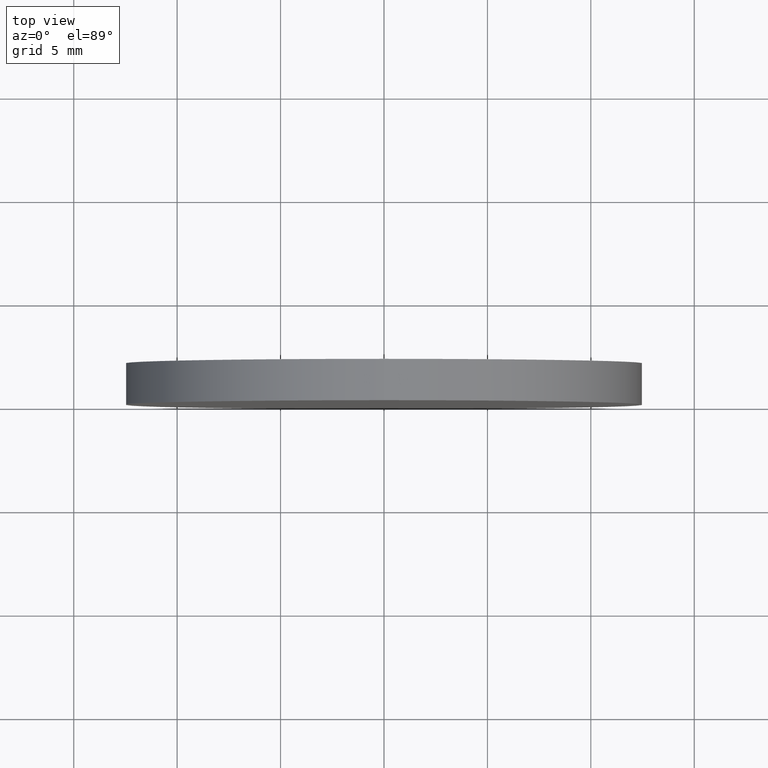
[diagram: clean part render]
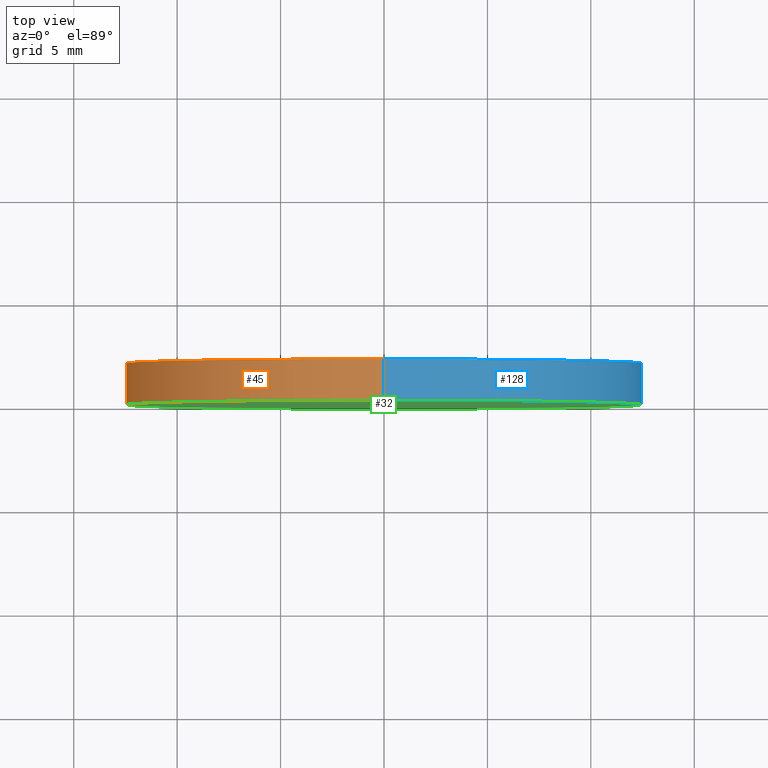
[diagram: same view with three faces highlighted in distinct colors, each labeled with its STEP entity id]
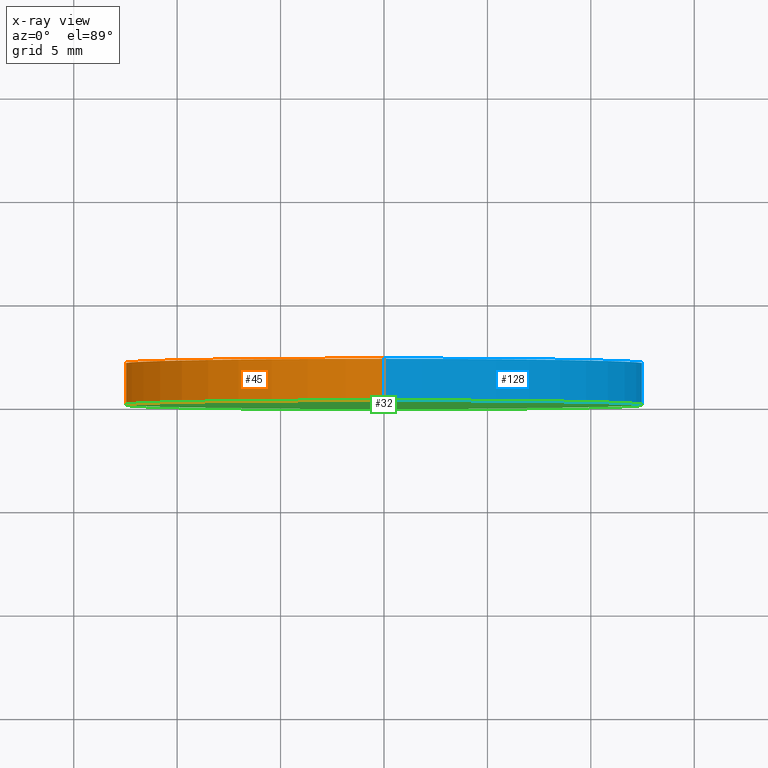
[diagram: x-ray of the same camera — body ghosted, the three highlighted faces saturated]
A machine part, top view with three faces highlighted in distinct colors.
The next image is the same camera in x-ray (body ghosted, the three faces saturated) — at least one of them is partly hidden behind the body in this view.
Their STEP definitions:

[orange] entity #45 — the highlighted cylindrical surface (partial cylindrical patch) has radius 12.5 mm, axis along (-0, -1, -0).
#7 = DIRECTION ( 'NONE',  ( 0.0000000000000000000, 0.0000000000000000000, 1.000000000000000000 ) ) ;
#10 = LINE ( 'NONE', #137, #38 ) ;
#11 = DIRECTION ( 'NONE',  ( -0.0000000000000000000, -1.000000000000000000, -0.0000000000000000000 ) ) ;
#14 = CYLINDRICAL_SURFACE ( 'NONE', #70, 12.50000000000000000 ) ;
#17 = CARTESIAN_POINT ( 'NONE',  ( 0.0000000000000000000, 2.000000000000000000, 0.0000000000000000000 ) ) ;
#21 = CARTESIAN_POINT ( 'NONE',  ( 0.0000000000000000000, 0.0000000000000000000, -12.50000000000000000 ) ) ;
#23 = VERTEX_POINT ( 'NONE', #21 ) ;
#29 = DIRECTION ( 'NONE',  ( 0.0000000000000000000, 1.000000000000000000, 0.0000000000000000000 ) ) ;
#30 = CARTESIAN_POINT ( 'NONE',  ( 0.0000000000000000000, 2.000000000000000000, 0.0000000000000000000 ) ) ;
#36 = EDGE_CURVE ( 'NONE', #68, #23, #63, .T. ) ;
#38 = VECTOR ( 'NONE', #109, 1000.000000000000000 ) ;
#41 = CIRCLE ( 'NONE', #89, 12.50000000000000000 ) ;
#42 = CARTESIAN_POINT ( 'NONE',  ( 1.530808498934191500E-015, 2.000000000000000000, 12.50000000000000000 ) ) ;
#45 = ADVANCED_FACE ( 'NONE', ( #119 ), #14, .T. ) ;
#46 = CIRCLE ( 'NONE', #85, 12.50000000000000000 ) ;
#50 = EDGE_CURVE ( 'NONE', #23, #113, #41, .T. ) ;
#52 = ORIENTED_EDGE ( 'NONE', *, *, #130, .F. ) ;
#61 = CARTESIAN_POINT ( 'NONE',  ( 0.0000000000000000000, 2.000000000000000000, -12.50000000000000000 ) ) ;
#63 = LINE ( 'NONE', #79, #116 ) ;
#67 = DIRECTION ( 'NONE',  ( -0.0000000000000000000, -1.000000000000000000, -0.0000000000000000000 ) ) ;
#68 = VERTEX_POINT ( 'NONE', #61 ) ;
#70 = AXIS2_PLACEMENT_3D ( 'NONE', #30, #67, #100 ) ;
#76 = DIRECTION ( 'NONE',  ( 0.0000000000000000000, 1.000000000000000000, 0.0000000000000000000 ) ) ;
#79 = CARTESIAN_POINT ( 'NONE',  ( 0.0000000000000000000, 2.000000000000000000, -12.50000000000000000 ) ) ;
#85 = AXIS2_PLACEMENT_3D ( 'NONE', #17, #76, #7 ) ;
#86 = ORIENTED_EDGE ( 'NONE', *, *, #36, .T. ) ;
#89 = AXIS2_PLACEMENT_3D ( 'NONE', #99, #29, #91 ) ;
#91 = DIRECTION ( 'NONE',  ( 0.0000000000000000000, 0.0000000000000000000, 1.000000000000000000 ) ) ;
#95 = VERTEX_POINT ( 'NONE', #42 ) ;
#99 = CARTESIAN_POINT ( 'NONE',  ( 0.0000000000000000000, 0.0000000000000000000, 0.0000000000000000000 ) ) ;
#100 = DIRECTION ( 'NONE',  ( 0.0000000000000000000, 0.0000000000000000000, -1.000000000000000000 ) ) ;
#104 = EDGE_LOOP ( 'NONE', ( #140, #52, #86, #129 ) ) ;
#109 = DIRECTION ( 'NONE',  ( -0.0000000000000000000, -1.000000000000000000, -0.0000000000000000000 ) ) ;
#113 = VERTEX_POINT ( 'NONE', #124 ) ;
#114 = EDGE_CURVE ( 'NONE', #95, #113, #10, .T. ) ;
#116 = VECTOR ( 'NONE', #11, 1000.000000000000000 ) ;
#119 = FACE_OUTER_BOUND ( 'NONE', #104, .T. ) ;
#124 = CARTESIAN_POINT ( 'NONE',  ( 1.530808498934191500E-015, 0.0000000000000000000, 12.50000000000000000 ) ) ;
#129 = ORIENTED_EDGE ( 'NONE', *, *, #50, .T. ) ;
#130 = EDGE_CURVE ( 'NONE', #68, #95, #46, .T. ) ;
#137 = CARTESIAN_POINT ( 'NONE',  ( 1.530808498934191500E-015, 2.000000000000000000, 12.50000000000000000 ) ) ;
#140 = ORIENTED_EDGE ( 'NONE', *, *, #114, .F. ) ;

[blue] entity #128 — the highlighted cylindrical surface (partial cylindrical patch) has radius 12.5 mm, axis along (-0, -1, -0).
#4 = ORIENTED_EDGE ( 'NONE', *, *, #6, .T. ) ;
#6 = EDGE_CURVE ( 'NONE', #113, #23, #31, .T. ) ;
#10 = LINE ( 'NONE', #137, #38 ) ;
#11 = DIRECTION ( 'NONE',  ( -0.0000000000000000000, -1.000000000000000000, -0.0000000000000000000 ) ) ;
#15 = FACE_OUTER_BOUND ( 'NONE', #107, .T. ) ;
#19 = EDGE_CURVE ( 'NONE', #95, #68, #126, .T. ) ;
#21 = CARTESIAN_POINT ( 'NONE',  ( 0.0000000000000000000, 0.0000000000000000000, -12.50000000000000000 ) ) ;
#23 = VERTEX_POINT ( 'NONE', #21 ) ;
#25 = ORIENTED_EDGE ( 'NONE', *, *, #114, .T. ) ;
#31 = CIRCLE ( 'NONE', #136, 12.50000000000000000 ) ;
#36 = EDGE_CURVE ( 'NONE', #68, #23, #63, .T. ) ;
#38 = VECTOR ( 'NONE', #109, 1000.000000000000000 ) ;
#40 = DIRECTION ( 'NONE',  ( 0.0000000000000000000, 0.0000000000000000000, -1.000000000000000000 ) ) ;
#42 = CARTESIAN_POINT ( 'NONE',  ( 1.530808498934191500E-015, 2.000000000000000000, 12.50000000000000000 ) ) ;
#44 = CYLINDRICAL_SURFACE ( 'NONE', #93, 12.50000000000000000 ) ;
#57 = ORIENTED_EDGE ( 'NONE', *, *, #36, .F. ) ;
#60 = DIRECTION ( 'NONE',  ( -0.0000000000000000000, -1.000000000000000000, -0.0000000000000000000 ) ) ;
#61 = CARTESIAN_POINT ( 'NONE',  ( 0.0000000000000000000, 2.000000000000000000, -12.50000000000000000 ) ) ;
#62 = DIRECTION ( 'NONE',  ( 0.0000000000000000000, 1.000000000000000000, 0.0000000000000000000 ) ) ;
#63 = LINE ( 'NONE', #79, #116 ) ;
#68 = VERTEX_POINT ( 'NONE', #61 ) ;
#69 = ORIENTED_EDGE ( 'NONE', *, *, #19, .F. ) ;
#79 = CARTESIAN_POINT ( 'NONE',  ( 0.0000000000000000000, 2.000000000000000000, -12.50000000000000000 ) ) ;
#80 = DIRECTION ( 'NONE',  ( 0.0000000000000000000, 0.0000000000000000000, 1.000000000000000000 ) ) ;
#81 = DIRECTION ( 'NONE',  ( 0.0000000000000000000, 1.000000000000000000, 0.0000000000000000000 ) ) ;
#93 = AXIS2_PLACEMENT_3D ( 'NONE', #135, #60, #40 ) ;
#95 = VERTEX_POINT ( 'NONE', #42 ) ;
#102 = CARTESIAN_POINT ( 'NONE',  ( 0.0000000000000000000, 0.0000000000000000000, 0.0000000000000000000 ) ) ;
#107 = EDGE_LOOP ( 'NONE', ( #69, #25, #4, #57 ) ) ;
#109 = DIRECTION ( 'NONE',  ( -0.0000000000000000000, -1.000000000000000000, -0.0000000000000000000 ) ) ;
#113 = VERTEX_POINT ( 'NONE', #124 ) ;
#114 = EDGE_CURVE ( 'NONE', #95, #113, #10, .T. ) ;
#116 = VECTOR ( 'NONE', #11, 1000.000000000000000 ) ;
#124 = CARTESIAN_POINT ( 'NONE',  ( 1.530808498934191500E-015, 0.0000000000000000000, 12.50000000000000000 ) ) ;
#125 = DIRECTION ( 'NONE',  ( 0.0000000000000000000, 0.0000000000000000000, 1.000000000000000000 ) ) ;
#126 = CIRCLE ( 'NONE', #127, 12.50000000000000000 ) ;
#127 = AXIS2_PLACEMENT_3D ( 'NONE', #138, #62, #125 ) ;
#128 = ADVANCED_FACE ( 'NONE', ( #15 ), #44, .T. ) ;
#135 = CARTESIAN_POINT ( 'NONE',  ( 0.0000000000000000000, 2.000000000000000000, 0.0000000000000000000 ) ) ;
#136 = AXIS2_PLACEMENT_3D ( 'NONE', #102, #81, #80 ) ;
#137 = CARTESIAN_POINT ( 'NONE',  ( 1.530808498934191500E-015, 2.000000000000000000, 12.50000000000000000 ) ) ;
#138 = CARTESIAN_POINT ( 'NONE',  ( 0.0000000000000000000, 2.000000000000000000, 0.0000000000000000000 ) ) ;

[green] entity #32 — the highlighted planar face has unit normal (0, 1, 0).
#2 = FACE_OUTER_BOUND ( 'NONE', #132, .T. ) ;
#6 = EDGE_CURVE ( 'NONE', #113, #23, #31, .T. ) ;
#12 = CARTESIAN_POINT ( 'NONE',  ( 0.0000000000000000000, 0.0000000000000000000, 0.0000000000000000000 ) ) ;
#21 = CARTESIAN_POINT ( 'NONE',  ( 0.0000000000000000000, 0.0000000000000000000, -12.50000000000000000 ) ) ;
#23 = VERTEX_POINT ( 'NONE', #21 ) ;
#29 = DIRECTION ( 'NONE',  ( 0.0000000000000000000, 1.000000000000000000, 0.0000000000000000000 ) ) ;
#31 = CIRCLE ( 'NONE', #136, 12.50000000000000000 ) ;
#32 = ADVANCED_FACE ( 'NONE', ( #2 ), #47, .F. ) ;
#41 = CIRCLE ( 'NONE', #89, 12.50000000000000000 ) ;
#43 = DIRECTION ( 'NONE',  ( 0.0000000000000000000, -0.0000000000000000000, 1.000000000000000000 ) ) ;
#47 = PLANE ( 'NONE',  #94 ) ;
#50 = EDGE_CURVE ( 'NONE', #23, #113, #41, .T. ) ;
#80 = DIRECTION ( 'NONE',  ( 0.0000000000000000000, 0.0000000000000000000, 1.000000000000000000 ) ) ;
#81 = DIRECTION ( 'NONE',  ( 0.0000000000000000000, 1.000000000000000000, 0.0000000000000000000 ) ) ;
#89 = AXIS2_PLACEMENT_3D ( 'NONE', #99, #29, #91 ) ;
#91 = DIRECTION ( 'NONE',  ( 0.0000000000000000000, 0.0000000000000000000, 1.000000000000000000 ) ) ;
#94 = AXIS2_PLACEMENT_3D ( 'NONE', #12, #112, #43 ) ;
#99 = CARTESIAN_POINT ( 'NONE',  ( 0.0000000000000000000, 0.0000000000000000000, 0.0000000000000000000 ) ) ;
#101 = ORIENTED_EDGE ( 'NONE', *, *, #6, .F. ) ;
#102 = CARTESIAN_POINT ( 'NONE',  ( 0.0000000000000000000, 0.0000000000000000000, 0.0000000000000000000 ) ) ;
#112 = DIRECTION ( 'NONE',  ( 0.0000000000000000000, 1.000000000000000000, 0.0000000000000000000 ) ) ;
#113 = VERTEX_POINT ( 'NONE', #124 ) ;
#124 = CARTESIAN_POINT ( 'NONE',  ( 1.530808498934191500E-015, 0.0000000000000000000, 12.50000000000000000 ) ) ;
#131 = ORIENTED_EDGE ( 'NONE', *, *, #50, .F. ) ;
#132 = EDGE_LOOP ( 'NONE', ( #131, #101 ) ) ;
#136 = AXIS2_PLACEMENT_3D ( 'NONE', #102, #81, #80 ) ;